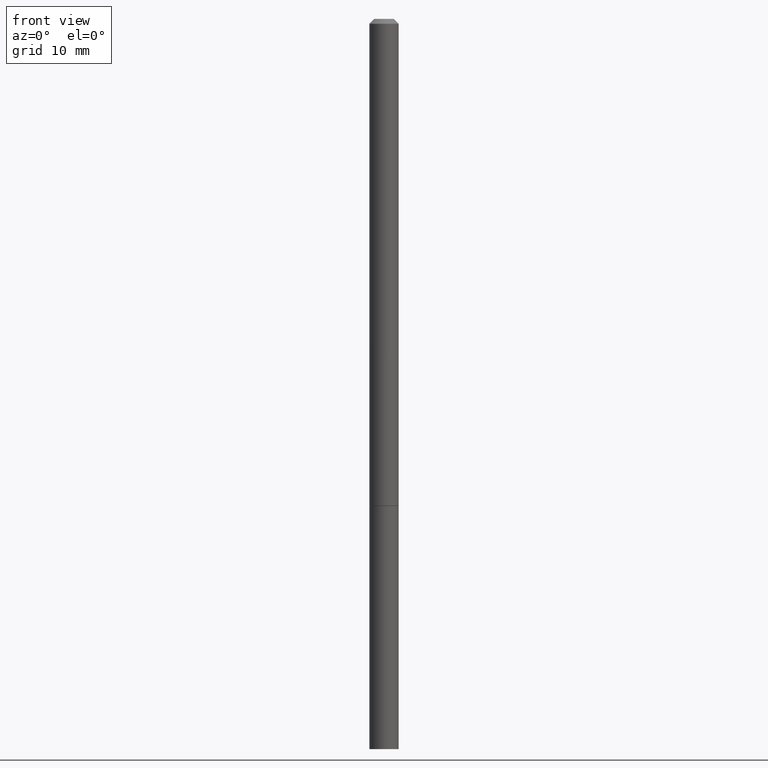
[diagram: clean part render]
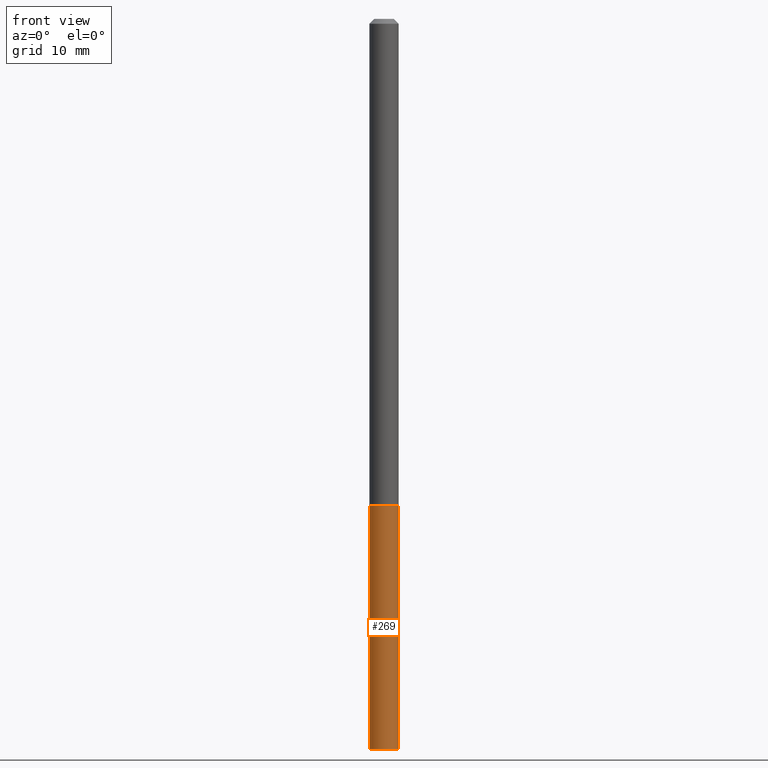
[diagram: same view with one face highlighted and labeled with its STEP entity id]
A machine part, front view. The second image highlights one B-rep face of the part: STEP entity #269.
In plain terms, the highlighted cylindrical surface (edge-blend (fillet) strip) has radius 1.4999 mm, axis along (-0, 0, 1).
Its self-contained STEP definition (entity closure, byte-faithful):
#3 = EDGE_CURVE ( 'NONE', #60, #321, #4, .T. ) ;
#4 = LINE ( 'NONE', #354, #289 ) ;
#6 = FACE_OUTER_BOUND ( 'NONE', #267, .T. ) ;
#42 = CYLINDRICAL_SURFACE ( 'NONE', #241, 0.05905000000000001914 ) ;
#60 = VERTEX_POINT ( 'NONE', #99 ) ;
#65 = VERTEX_POINT ( 'NONE', #103 ) ;
#75 = VERTEX_POINT ( 'NONE', #208 ) ;
#76 = ORIENTED_EDGE ( 'NONE', *, *, #3, .F. ) ;
#77 = DIRECTION ( 'NONE',  ( -2.445468806185136877E-29, 3.491481338843145188E-15, 1.000000000000000000 ) ) ;
#88 = CIRCLE ( 'NONE', #96, 0.05905000000000001914 ) ;
#96 = AXIS2_PLACEMENT_3D ( 'NONE', #261, #153, #233 ) ;
#99 = CARTESIAN_POINT ( 'NONE',  ( -0.05905000000000001914, -8.171738070958045625E-15, -2.952799999999999869 ) ) ;
#100 = DIRECTION ( 'NONE',  ( 1.000000000000000000, -6.982962677686266711E-15, 4.876176775795935793E-29 ) ) ;
#103 = CARTESIAN_POINT ( 'NONE',  ( 0.05905000000000001914, -7.285324961630105839E-15, -1.968499999999999694 ) ) ;
#117 = EDGE_CURVE ( 'NONE', #321, #65, #202, .T. ) ;
#122 = CARTESIAN_POINT ( 'NONE',  ( 0.000000000000000000, 0.000000000000000000, 0.000000000000000000 ) ) ;
#153 = DIRECTION ( 'NONE',  ( -2.445468806185136597E-29, 3.491481338843145583E-15, 1.000000000000000000 ) ) ;
#155 = DIRECTION ( 'NONE',  ( -2.445468806185136597E-29, 3.491481338843145583E-15, 1.000000000000000000 ) ) ;
#184 = CARTESIAN_POINT ( 'NONE',  ( -0.05905000000000001914, -8.171738070958045625E-15, -1.968499999999999694 ) ) ;
#185 = DIRECTION ( 'NONE',  ( -2.445468806185136877E-29, 3.491481338843145188E-15, 1.000000000000000000 ) ) ;
#196 = DIRECTION ( 'NONE',  ( 1.000000000000000000, -6.982962677686270655E-15, 0.000000000000000000 ) ) ;
#202 = CIRCLE ( 'NONE', #295, 0.05905000000000001914 ) ;
#208 = CARTESIAN_POINT ( 'NONE',  ( 0.05905000000000001914, -1.072199004345341266E-14, -2.952799999999999869 ) ) ;
#213 = LINE ( 'NONE', #325, #343 ) ;
#222 = EDGE_CURVE ( 'NONE', #75, #65, #213, .T. ) ;
#224 = ORIENTED_EDGE ( 'NONE', *, *, #117, .F. ) ;
#233 = DIRECTION ( 'NONE',  ( 1.000000000000000000, -6.982962677686270655E-15, 0.000000000000000000 ) ) ;
#241 = AXIS2_PLACEMENT_3D ( 'NONE', #122, #155, #100 ) ;
#261 = CARTESIAN_POINT ( 'NONE',  ( 7.220980290903470182E-29, -1.030964609733603853E-14, -2.952799999999999869 ) ) ;
#265 = ORIENTED_EDGE ( 'NONE', *, *, #222, .T. ) ;
#267 = EDGE_LOOP ( 'NONE', ( #76, #358, #265, #224 ) ) ;
#269 = ADVANCED_FACE ( 'NONE', ( #6 ), #42, .T. ) ;
#276 = DIRECTION ( 'NONE',  ( -2.445468806185136597E-29, 3.491481338843145583E-15, 1.000000000000000000 ) ) ;
#282 = EDGE_CURVE ( 'NONE', #60, #75, #88, .T. ) ;
#289 = VECTOR ( 'NONE', #185, 39.37007874015748143 ) ;
#295 = AXIS2_PLACEMENT_3D ( 'NONE', #332, #276, #196 ) ;
#321 = VERTEX_POINT ( 'NONE', #184 ) ;
#325 = CARTESIAN_POINT ( 'NONE',  ( 0.05905000000000001914, -4.123439461173741806E-16, 2.879382386107500921E-30 ) ) ;
#332 = CARTESIAN_POINT ( 'NONE',  ( 4.813905344975440714E-29, -6.872981015512730918E-15, -1.968499999999999694 ) ) ;
#343 = VECTOR ( 'NONE', #77, 39.37007874015748143 ) ;
#354 = CARTESIAN_POINT ( 'NONE',  ( -0.05905000000000001914, 4.195754854663392958E-16, -2.904631170795522943E-30 ) ) ;
#358 = ORIENTED_EDGE ( 'NONE', *, *, #282, .T. ) ;